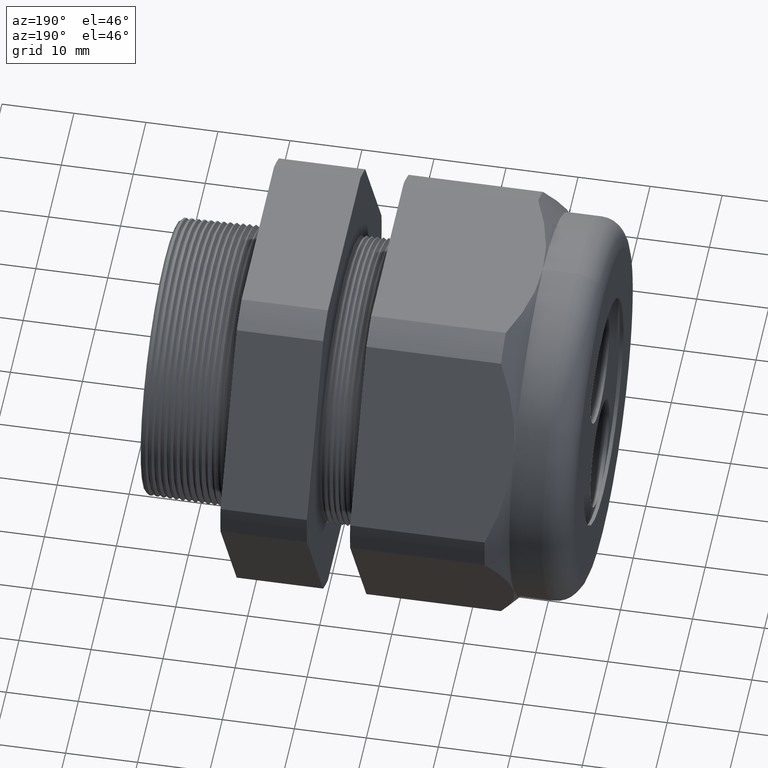
[diagram: clean part render]
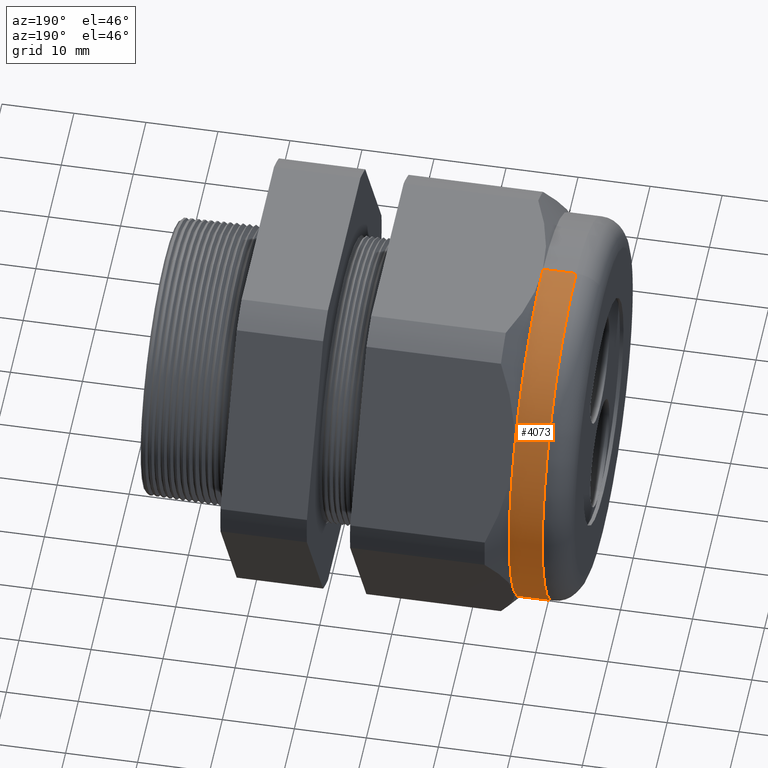
[diagram: same view with one face highlighted and labeled with its STEP entity id]
A machine part, auxiliary view. The second image highlights one B-rep face of the part: STEP entity #4073.
In plain terms, the highlighted cylindrical surface (partial cylindrical patch) has radius 26.543 mm, axis along (1, 0, 0).
Its self-contained STEP definition (entity closure, byte-faithful):
#1522 = DIRECTION ( 'NONE',  ( 0.0000000000000000000, 0.0000000000000000000, -1.000000000000000000 ) ) ;
#1523 = DIRECTION ( 'NONE',  ( 1.000000000000000000, 0.0000000000000000000, 0.0000000000000000000 ) ) ;
#1524 = CARTESIAN_POINT ( 'NONE',  ( 0.0000000000000000000, 0.0000000000000000000, 0.0000000000000000000 ) ) ;
#1525 = AXIS2_PLACEMENT_3D ( 'NONE', #1524, #1523, #1522 ) ;
#1527 = CYLINDRICAL_SURFACE ( 'NONE', #1525, 1.044999999999999900 ) ;
#1528 = FACE_OUTER_BOUND ( 'NONE', #4048, .T. ) ;
#1543 = CARTESIAN_POINT ( 'NONE',  ( -1.869292000000000000, 0.0000000000000000000, -1.044999999999999900 ) ) ;
#1551 = DIRECTION ( 'NONE',  ( 1.000000000000000000, 0.0000000000000000000, 0.0000000000000000000 ) ) ;
#1552 = VECTOR ( 'NONE', #1551, 39.37007874015748100 ) ;
#1553 = CARTESIAN_POINT ( 'NONE',  ( 0.0000000000000000000, 0.0000000000000000000, -1.044999999999999900 ) ) ;
#1554 = LINE ( 'NONE', #1553, #1552 ) ;
#1589 = CARTESIAN_POINT ( 'NONE',  ( -2.049999999999999800, 1.279755905108984100E-016, 1.044999999999999900 ) ) ;
#1590 = CARTESIAN_POINT ( 'NONE',  ( -2.049999999999999800, 0.0000000000000000000, -1.044999999999999900 ) ) ;
#1591 = DIRECTION ( 'NONE',  ( 0.0000000000000000000, 0.0000000000000000000, -1.000000000000000000 ) ) ;
#1592 = DIRECTION ( 'NONE',  ( 1.000000000000000000, 0.0000000000000000000, 0.0000000000000000000 ) ) ;
#1593 = CARTESIAN_POINT ( 'NONE',  ( -1.869292000000000000, 0.0000000000000000000, 0.0000000000000000000 ) ) ;
#1594 = AXIS2_PLACEMENT_3D ( 'NONE', #1593, #1592, #1591 ) ;
#1595 = CIRCLE ( 'NONE', #1594, 1.044999999999999700 ) ;
#1596 = CARTESIAN_POINT ( 'NONE',  ( -1.869292000000000000, 0.9049965469547385200, -0.5224999999999998500 ) ) ;
#1597 = CARTESIAN_POINT ( 'NONE',  ( -1.869292000000000000, 0.9049965469547380800, 0.5224999999999996300 ) ) ;
#1598 = DIRECTION ( 'NONE',  ( 0.0000000000000000000, 0.0000000000000000000, -1.000000000000000000 ) ) ;
#1599 = DIRECTION ( 'NONE',  ( 1.000000000000000000, 0.0000000000000000000, 0.0000000000000000000 ) ) ;
#1600 = CARTESIAN_POINT ( 'NONE',  ( -1.869292000000000000, 0.0000000000000000000, 0.0000000000000000000 ) ) ;
#1601 = AXIS2_PLACEMENT_3D ( 'NONE', #1600, #1599, #1598 ) ;
#1602 = CIRCLE ( 'NONE', #1601, 1.044999999999999700 ) ;
#1603 = CARTESIAN_POINT ( 'NONE',  ( -1.869292000000000000, 0.0000000000000000000, 1.044999999999999900 ) ) ;
#1604 = DIRECTION ( 'NONE',  ( 1.000000000000000000, 0.0000000000000000000, 0.0000000000000000000 ) ) ;
#1605 = VECTOR ( 'NONE', #1604, 39.37007874015748100 ) ;
#1606 = CARTESIAN_POINT ( 'NONE',  ( 0.0000000000000000000, 1.279755905108984100E-016, 1.044999999999999900 ) ) ;
#1607 = LINE ( 'NONE', #1606, #1605 ) ;
#1652 = DIRECTION ( 'NONE',  ( 0.0000000000000000000, 0.0000000000000000000, 1.000000000000000000 ) ) ;
#1653 = DIRECTION ( 'NONE',  ( 1.000000000000000000, 0.0000000000000000000, 0.0000000000000000000 ) ) ;
#1654 = CARTESIAN_POINT ( 'NONE',  ( -2.049999999999999800, 0.0000000000000000000, 0.0000000000000000000 ) ) ;
#1655 = AXIS2_PLACEMENT_3D ( 'NONE', #1654, #1653, #1652 ) ;
#1656 = CIRCLE ( 'NONE', #1655, 1.044999999999999900 ) ;
#1695 = DIRECTION ( 'NONE',  ( 0.0000000000000000000, 0.0000000000000000000, -1.000000000000000000 ) ) ;
#1696 = DIRECTION ( 'NONE',  ( 1.000000000000000000, 0.0000000000000000000, 0.0000000000000000000 ) ) ;
#1697 = CARTESIAN_POINT ( 'NONE',  ( -1.869292000000000000, 0.0000000000000000000, 0.0000000000000000000 ) ) ;
#1698 = AXIS2_PLACEMENT_3D ( 'NONE', #1697, #1696, #1695 ) ;
#1699 = CIRCLE ( 'NONE', #1698, 1.044999999999999700 ) ;
#4048 = EDGE_LOOP ( 'NONE', ( #4074, #4075, #4100, #4103, #4152, #4094 ) ) ;
#4068 = VERTEX_POINT ( 'NONE', #1543 ) ;
#4073 = ADVANCED_FACE ( 'NONE', ( #1528 ), #1527, .T. ) ;
#4074 = ORIENTED_EDGE ( 'NONE', *, *, #4144, .T. ) ;
#4075 = ORIENTED_EDGE ( 'NONE', *, *, #4098, .T. ) ;
#4094 = ORIENTED_EDGE ( 'NONE', *, *, #4095, .F. ) ;
#4095 = EDGE_CURVE ( 'NONE', #4106, #4068, #1554, .T. ) ;
#4098 = EDGE_CURVE ( 'NONE', #4107, #4099, #1607, .T. ) ;
#4099 = VERTEX_POINT ( 'NONE', #1603 ) ;
#4100 = ORIENTED_EDGE ( 'NONE', *, *, #4101, .F. ) ;
#4101 = EDGE_CURVE ( 'NONE', #4102, #4099, #1602, .T. ) ;
#4102 = VERTEX_POINT ( 'NONE', #1597 ) ;
#4103 = ORIENTED_EDGE ( 'NONE', *, *, #4104, .F. ) ;
#4104 = EDGE_CURVE ( 'NONE', #4105, #4102, #1595, .T. ) ;
#4105 = VERTEX_POINT ( 'NONE', #1596 ) ;
#4106 = VERTEX_POINT ( 'NONE', #1590 ) ;
#4107 = VERTEX_POINT ( 'NONE', #1589 ) ;
#4144 = EDGE_CURVE ( 'NONE', #4106, #4107, #1656, .T. ) ;
#4152 = ORIENTED_EDGE ( 'NONE', *, *, #4153, .F. ) ;
#4153 = EDGE_CURVE ( 'NONE', #4068, #4105, #1699, .T. ) ;